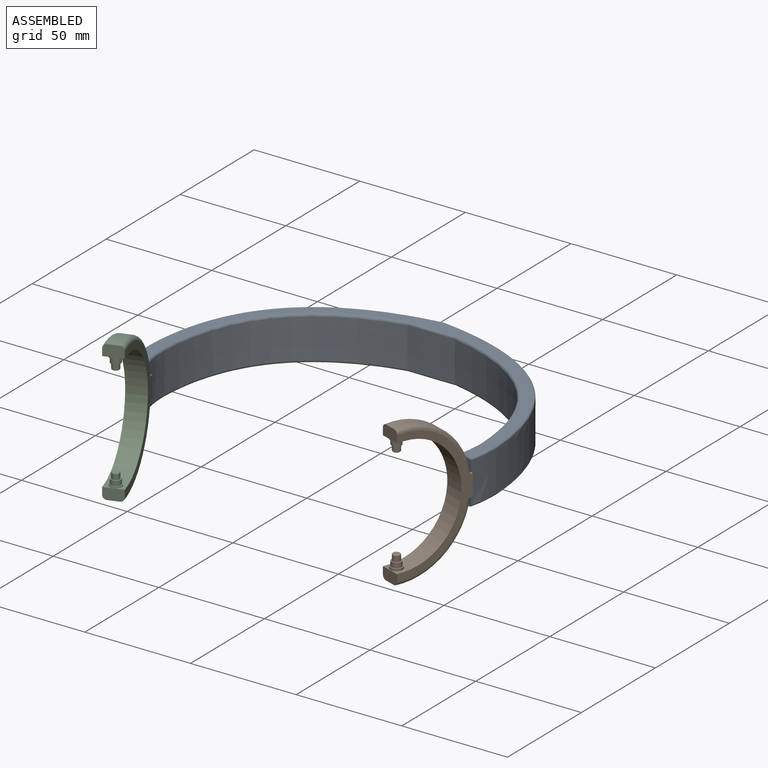
[diagram: assembled view]
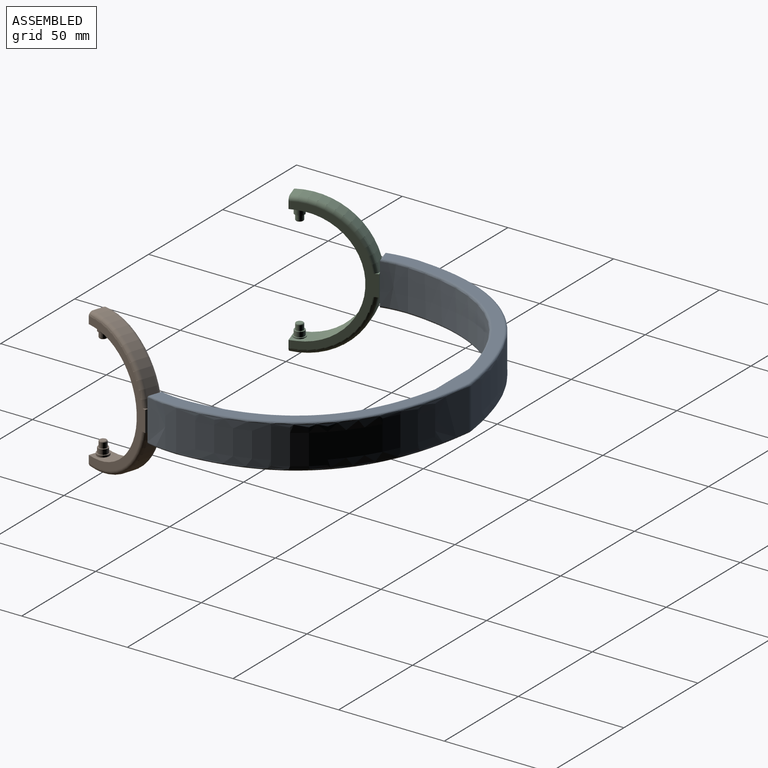
[diagram: assembled view, second angle]
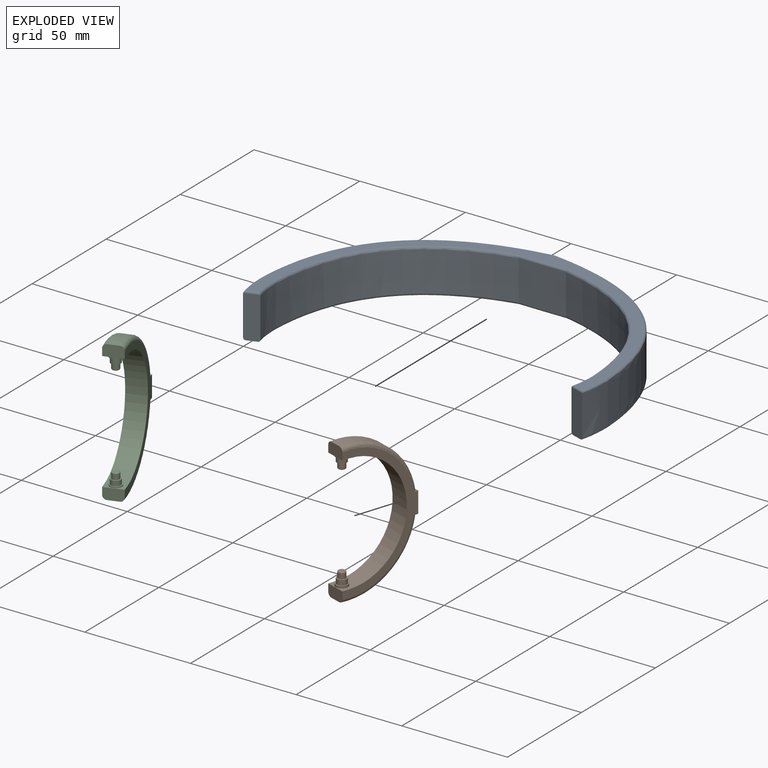
[diagram: exploded view]
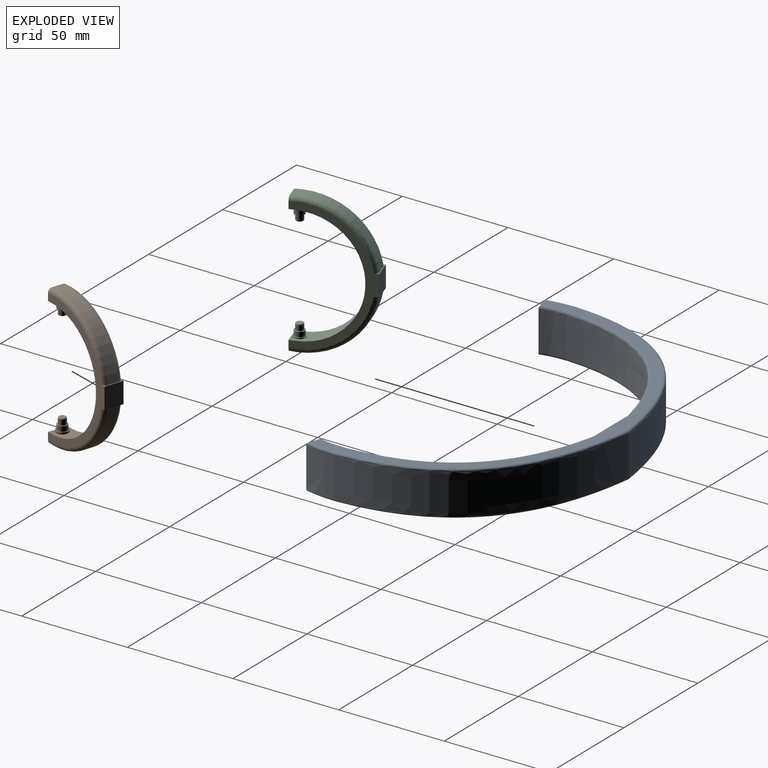
[diagram: exploded view, second angle]
ASSEMBLY  parts=3 mates=2
PART A: 48 faces, bbox 164.2x97.1x21 mm
  f0: extruded ~73.07x63.78mm, area 2012.7mm2, adj f1,f15,f30,f35
  f1: plane 19x11.22mm, normal (-0.01,-1,0), area 213.3mm2, adj f0,f2,f29,f33
  f2: plane 19x11.22mm, normal (0.01,-1,0), area 213.2mm2, adj f1,f3,f28,f32
  f3: extruded ~73.07x63.78mm, area 2012.8mm2, adj f2,f4,f27,f34
  f4: extruded ~19x12.35mm, area 236.7mm2, adj f3,f5,f26,f36
  f5: plane 20.04x6.7mm, normal (-0.31,-0.95,0), area 139.8mm2, adj f4,f6,f17,f20,f26,f38
  f6: extruded ~19x14.55mm, area 279.3mm2, adj f5,f7,f20,f40
  f7: plane 19x0.3mm, normal (1,0.02,0), area 5.8mm2, adj f6,f8,f22,f42
  f8: extruded ~81.63x81.06mm, area 2414.5mm2, adj f7,f9,f24,f44
  f9: extruded ~19x0.93mm, area 17.8mm2, adj f8,f10,f25,f46
  f10: extruded ~19x0.93mm, area 17.8mm2, adj f9,f11,f23,f47
  f11: extruded ~81.63x81.06mm, area 2414.5mm2, adj f10,f12,f21,f45
  f12: plane 19x0.3mm, normal (-1,0.02,0), area 5.8mm2, adj f11,f13,f19,f43
  f13: extruded ~19x14.55mm, area 279.3mm2, adj f12,f14,f18,f41
  f14: plane 20.04x6.7mm, normal (0.31,-0.95,0), area 139.8mm2, adj f13,f15,f17,f18,f31,f39
  f15: extruded ~19x12.35mm, area 236.7mm2, adj f0,f14,f31,f37
  f16: plane 162.05x94.29mm, normal (0,0,1), area 1377.9mm2, adj f32,f33,f34,f35,f36,f37,f38,f39
  f17: plane 162.05x95.26mm, normal (0,0,-1), area 1388.2mm2, adj f5,f14,f18,f19,f20,f21,f22,f23
  f18: bspline ~18.3x2.78mm, area 22.9mm2, adj f13,f14,f17,f19
  f19: cylinder r=1mm len=1.01mm, axis (0.02,1,0), area 0.5mm2, adj f12,f17,f18,f21
  f20: bspline ~18.3x2.78mm, area 22.9mm2, adj f5,f6,f17,f22
  f21: bspline ~83.16x82.78mm, area 198.8mm2, adj f11,f17,f19,f23
  f22: cylinder r=1mm len=1.01mm, axis (-0.02,1,0), area 0.5mm2, adj f7,f17,f20,f24
  f23: bspline ~1.24x1.1mm, area 1.4mm2, adj f10,f17,f21,f25
  f24: bspline ~83.41x82.36mm, area 198.8mm2, adj f8,f17,f22,f25
  f25: bspline ~1.4x1.1mm, area 1.4mm2, adj f9,f17,f23,f24
  f26: bspline ~15.85x2.48mm, area 19.8mm2, adj f4,f5,f17,f27
  f27: bspline ~77.21x68.91mm, area 167.2mm2, adj f3,f17,f26,f28
  f28: cylinder r=1mm len=11.33mm, axis (1,0.01,0), area 17.7mm2, adj f2,f17,f27,f29
  f29: cylinder r=1mm len=11.34mm, axis (1,-0.01,0), area 17.7mm2, adj f1,f17,f28,f30
  f30: bspline ~75.99x65.33mm, area 167.3mm2, adj f0,f17,f29,f31
  f31: bspline ~15.85x2.48mm, area 19.8mm2, adj f14,f15,f17,f30
  f32: cylinder r=1mm len=11.33mm, axis (-1,-0.01,0), area 17.7mm2, adj f2,f16,f33,f34
  f33: cylinder r=1mm len=11.34mm, axis (-1,0.01,0), area 17.7mm2, adj f1,f16,f32,f35
  f34: bspline ~75.99x65.33mm, area 167.3mm2, adj f3,f16,f32,f36
  f35: bspline ~77.21x68.9mm, area 167.2mm2, adj f0,f16,f33,f37
  f36: bspline ~15.85x2.48mm, area 19mm2, adj f4,f16,f34,f38
  f37: bspline ~15.85x2.48mm, area 19mm2, adj f15,f16,f35,f39
  f38: cylinder r=1mm len=6.97mm, axis (-0.95,0.31,0), area 9.4mm2, adj f5,f16,f36,f40
  f39: cylinder r=1mm len=6.97mm, axis (-0.95,-0.31,0), area 9.4mm2, adj f14,f16,f37,f41
  f40: bspline ~18.3x2.78mm, area 22.1mm2, adj f6,f16,f38,f42
  f41: bspline ~18.3x2.78mm, area 22.1mm2, adj f13,f16,f39,f43
  f42: cylinder r=1mm len=1.01mm, axis (0.02,-1,0), area 0.5mm2, adj f7,f16,f40,f44
  f43: cylinder r=1mm len=1.01mm, axis (0.02,1,0), area 0.5mm2, adj f12,f16,f41,f45
  f44: bspline ~83.16x82.78mm, area 198.8mm2, adj f8,f16,f42,f46
  f45: bspline ~83.41x82.36mm, area 198.8mm2, adj f11,f16,f43,f47
  f46: bspline ~1.24x1.1mm, area 1.4mm2, adj f9,f16,f44,f47
  f47: bspline ~1.4x1.1mm, area 1.4mm2, adj f10,f16,f45,f46
PART B: 30 faces, bbox 72.5x39.5x9.2 mm
  f0: cylinder r=28mm len=56mm, axis (0,0,-1), area 783.7mm2, adj f1,f9,f10,f11,f12,f19
  f1: plane 9.2x3.15mm, normal (1,0,0), area 16.2mm2, adj f0,f2,f10,f11,f12
  f2: plane 9.2x5.35mm, normal (0,1,0), area 47.5mm2, adj f1,f3,f10,f11,f27,f29
  f3: cylinder r=33.5mm len=36.27mm, axis (0,0,-1), area 263.9mm2, adj f2,f4,f27,f29
  f4: plane 9.2x2.4mm, normal (-1,0,0), area 5.2mm2, adj f3,f5,f10,f11,f27,f29
  f5: plane 10x9.2mm, normal (0,-1,0), area 92mm2, adj f4,f6,f10,f11
  f6: plane 9.2x2.4mm, normal (1,0,0), area 5.2mm2, adj f5,f7,f10,f11,f26,f28
  f7: cylinder r=33.5mm len=36.27mm, axis (0,0,-1), area 263.9mm2, adj f6,f8,f26,f28
  f8: plane 9.2x5.35mm, normal (0,1,0), area 47.5mm2, adj f7,f9,f10,f11,f26,f28
  f9: plane 9.2x3.15mm, normal (-1,0,0), area 16.2mm2, adj f0,f8,f10,f11,f19
  f10: plane 63x36.65mm, normal (0,0,1), area 370.2mm2, adj f0,f1,f2,f4,f5,f6,f8,f9
  f11: plane 63x36.65mm, normal (0,0,-1), area 370.2mm2, adj f0,f1,f2,f4,f5,f6,f8,f9
  f12: cylinder r=2.85mm len=5.7mm, axis (-1,0,0), area 17.3mm2, adj f0,f1,f13
  f13: plane 5.7x5.7mm, normal (1,0,0), area 8.2mm2, adj f12,f14
  f14: cylinder r=2.35mm len=4.7mm, axis (-1,0,0), area 35.4mm2, adj f13,f15
  f15: plane 4.7x4.7mm, normal (1,0,0), area 7.4mm2, adj f14,f16
  f16: cylinder r=1.78mm len=3.56mm, axis (-1,0,0), area 28mm2, adj f15,f18
  f17: plane 2.56x2.56mm, normal (1,0,0), area 5.1mm2, adj f18
  f18: torus R=1.28mm, axis (1,0,0), area 7.9mm2, adj f16,f17
  f19: cylinder r=2.85mm len=5.7mm, axis (1,0,0), area 8.8mm2, adj f0,f9,f20
  f20: plane 5.7x5.7mm, normal (-1,0,0), area 8.2mm2, adj f19,f21
  f21: cylinder r=2.35mm len=4.7mm, axis (1,0,0), area 35.4mm2, adj f20,f22
  f22: plane 4.7x4.7mm, normal (-1,0,0), area 7.4mm2, adj f21,f23
  f23: cylinder r=1.78mm len=3.56mm, axis (1,0,0), area 28mm2, adj f22,f25
  f24: plane 2.56x2.56mm, normal (-1,0,0), area 5.1mm2, adj f25
  f25: torus R=1.28mm, axis (-1,0,0), area 7.9mm2, adj f23,f24
  f26: torus R=31.5mm, axis (0,0,1), area 155.9mm2, adj f6,f7,f8,f11
  f27: torus R=31.5mm, axis (0,0,1), area 155.9mm2, adj f2,f3,f4,f11
  f28: torus R=31.5mm, axis (0,0,1), area 155.9mm2, adj f6,f7,f8,f10
  f29: torus R=31.5mm, axis (0,0,1), area 155.9mm2, adj f2,f3,f4,f10
PART C: same geometry as B
PLACE A t=(9.76,-27.89,26.22)mm
PLACE B rot(axis=(0.7,-0.11,0.7),167.1deg) t=(34.53,-159.37,36.48)mm
PLACE C rot(axis=(0.7,0.11,-0.7),167.1deg) t=(-15.01,-159.37,36.01)mm
MATE fastened C.f5 <-> A.f14  axis (-0.31,0.95,0) through (-67.19,-16.34,36.25)mm
MATE fastened B.f5 <-> A.f5  axis (0.31,0.95,0) through (86.71,-16.34,36.25)mm
